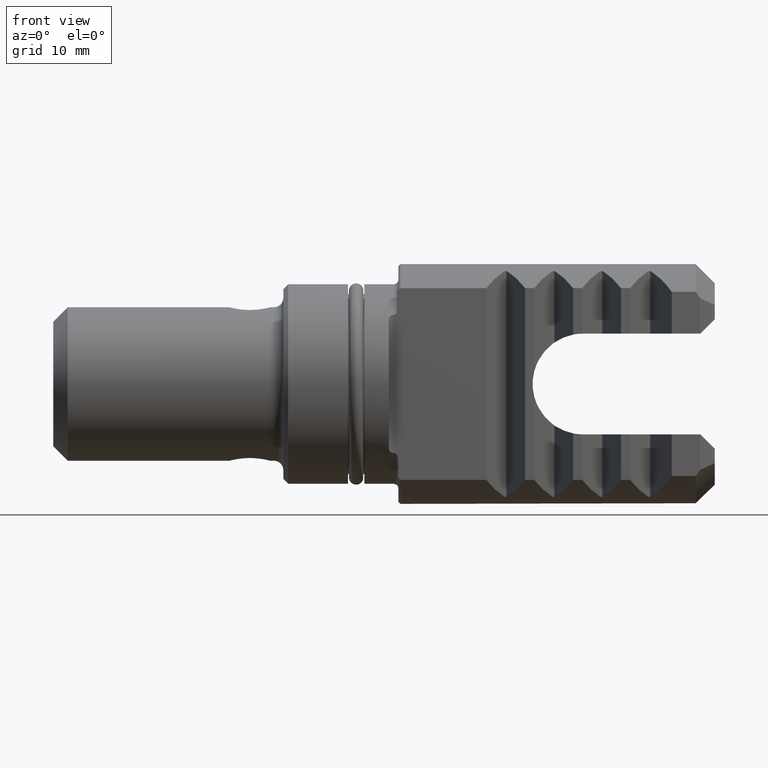
[diagram: clean part render]
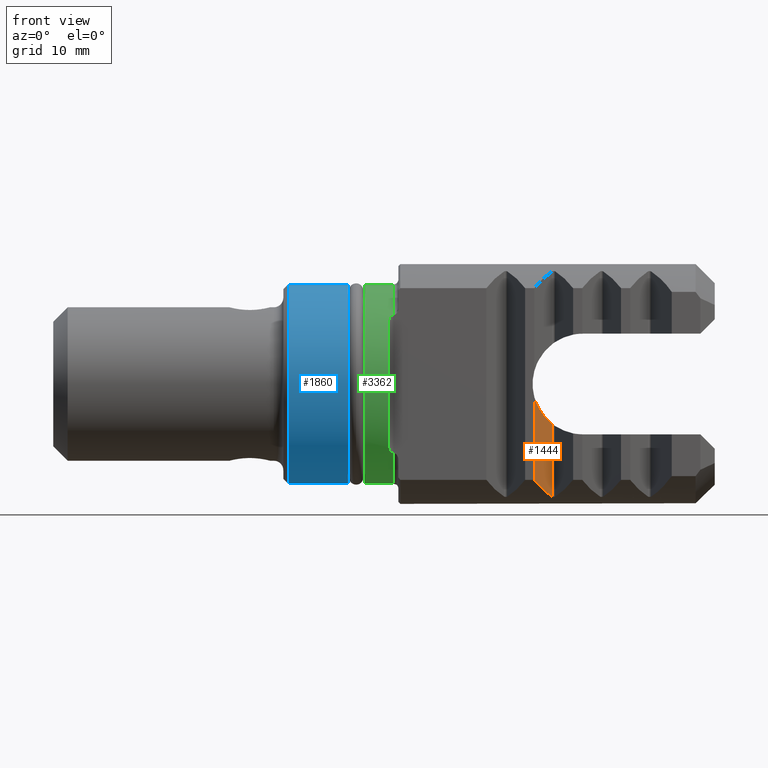
[diagram: same view with three faces highlighted in distinct colors, each labeled with its STEP entity id]
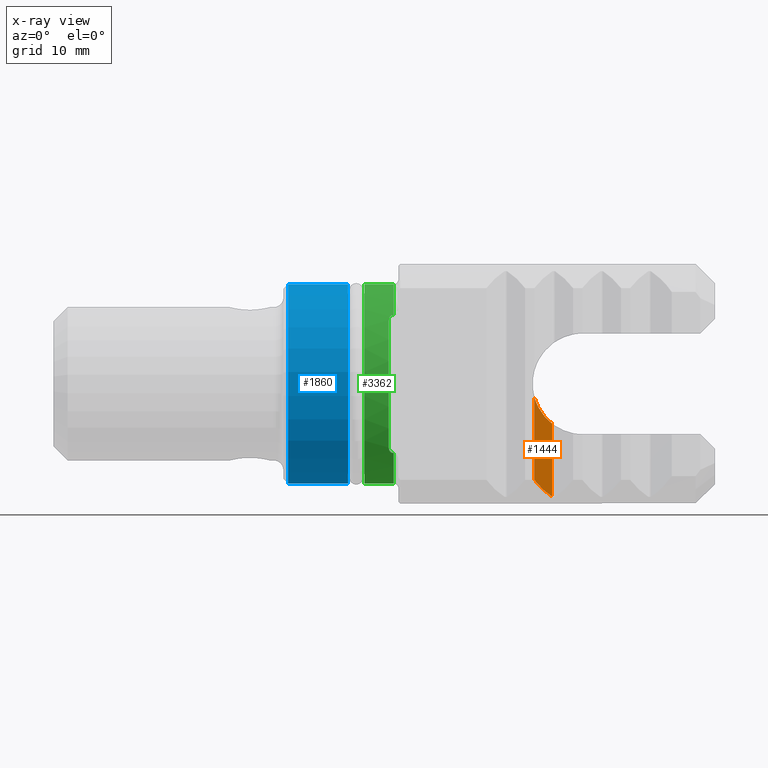
[diagram: x-ray of the same camera — body ghosted, the three highlighted faces saturated]
A machine part, front view with three faces highlighted in distinct colors.
The next image is the same camera in x-ray (body ghosted, the three faces saturated) — at least one of them is partly hidden behind the body in this view.
Their STEP definitions:

[orange] entity #1444 — the highlighted planar face has unit normal (-0.866, 0.5, 0).
#145 = CARTESIAN_POINT ( 'NONE',  ( 50.17927405783629500, -7.500000000000002700, -1.360234692789419300 ) ) ;
#146 = CARTESIAN_POINT ( 'NONE',  ( 50.47818569027632700, -6.982269865640513600, -2.474526937401916100 ) ) ;
#234 = FACE_OUTER_BOUND ( 'NONE', #3201, .T. ) ;
#275 = CARTESIAN_POINT ( 'NONE',  ( 51.11613183575846600, -5.877314729172664600, -3.435786572399651500 ) ) ;
#432 = CARTESIAN_POINT ( 'NONE',  ( 52.02679491924310900, -4.299999999999863000, -11.73712060089702000 ) ) ;
#471 = ORIENTED_EDGE ( 'NONE', *, *, #1736, .T. ) ;
#534 = ORIENTED_EDGE ( 'NONE', *, *, #1788, .T. ) ;
#673 = CARTESIAN_POINT ( 'NONE',  ( 50.17927405783629500, -7.500000000000002700, -1.360234692789419300 ) ) ;
#908 = CARTESIAN_POINT ( 'NONE',  ( 52.02679491924310900, -4.299999999999863000, -4.144086027990119300 ) ) ;
#1103 = VERTEX_POINT ( 'NONE', #4153 ) ;
#1179 = CARTESIAN_POINT ( 'NONE',  ( 50.17927405783629500, -7.500000000000002700, -12.50000000000000000 ) ) ;
#1215 =( BOUNDED_CURVE ( )  B_SPLINE_CURVE ( 3, ( #1618, #3579, #3178, #2424 ),
 .UNSPECIFIED., .F., .F. ) 
 B_SPLINE_CURVE_WITH_KNOTS ( ( 4, 4 ),
 ( 5.063562560282546700, 5.355890089177974800 ),
 .UNSPECIFIED. ) 
 CURVE ( )  GEOMETRIC_REPRESENTATION_ITEM ( )  RATIONAL_B_SPLINE_CURVE ( ( 1.000000000000000000, 0.9928913871268314500, 0.9928913871268314500, 1.000000000000000000 ) ) 
 REPRESENTATION_ITEM ( '' )  );
#1218 = VECTOR ( 'NONE', #3852, 1000.000000000000000 ) ;
#1240 = CARTESIAN_POINT ( 'NONE',  ( 52.02679491924310900, -4.299999999999863000, -4.144086027990119300 ) ) ;
#1324 =( BOUNDED_CURVE ( )  B_SPLINE_CURVE ( 3, ( #908, #275, #146, #145 ),
 .UNSPECIFIED., .F., .F. ) 
 B_SPLINE_CURVE_WITH_KNOTS ( ( 4, 4 ),
 ( 2.231843564040104900, 2.879510337548338800 ),
 .UNSPECIFIED. ) 
 CURVE ( )  GEOMETRIC_REPRESENTATION_ITEM ( )  RATIONAL_B_SPLINE_CURVE ( ( 1.000000000000000000, 0.9653483942130620700, 0.9653483942130620700, 1.000000000000000000 ) ) 
 REPRESENTATION_ITEM ( '' )  );
#1444 = ADVANCED_FACE ( 'NONE', ( #234 ), #3388, .F. ) ;
#1494 = EDGE_CURVE ( 'NONE', #4130, #1103, #1215, .T. ) ;
#1618 = CARTESIAN_POINT ( 'NONE',  ( 52.02679491924310900, -4.299999999999863000, -11.73712060089702000 ) ) ;
#1736 = EDGE_CURVE ( 'NONE', #3636, #3995, #1324, .T. ) ;
#1788 = EDGE_CURVE ( 'NONE', #4130, #3636, #2153, .T. ) ;
#1957 = EDGE_CURVE ( 'NONE', #1103, #3995, #3167, .T. ) ;
#2153 = LINE ( 'NONE', #3855, #1218 ) ;
#2391 = DIRECTION ( 'NONE',  ( -0.0000000000000000000, -0.0000000000000000000, 1.000000000000000000 ) ) ;
#2424 = CARTESIAN_POINT ( 'NONE',  ( 50.17927405783629500, -7.500000000000002700, -9.999999999999998200 ) ) ;
#2533 = DIRECTION ( 'NONE',  ( -0.8660254037844469200, 0.4999999999999856200, 0.0000000000000000000 ) ) ;
#2565 = CARTESIAN_POINT ( 'NONE',  ( 52.02679491924310900, -4.299999999999863000, -12.50000000000000000 ) ) ;
#2571 = DIRECTION ( 'NONE',  ( -0.4999999999999856200, -0.8660254037844469200, 0.0000000000000000000 ) ) ;
#2718 = AXIS2_PLACEMENT_3D ( 'NONE', #2565, #2533, #2571 ) ;
#3167 = LINE ( 'NONE', #1179, #3622 ) ;
#3178 = CARTESIAN_POINT ( 'NONE',  ( 50.74387112841203200, -6.522089187958267900, -10.73343310903130300 ) ) ;
#3201 = EDGE_LOOP ( 'NONE', ( #534, #471, #4227, #3382 ) ) ;
#3382 = ORIENTED_EDGE ( 'NONE', *, *, #1494, .F. ) ;
#3388 = PLANE ( 'NONE',  #2718 ) ;
#3579 = CARTESIAN_POINT ( 'NONE',  ( 51.36412052841708200, -5.447785713785356700, -11.31661895171909300 ) ) ;
#3622 = VECTOR ( 'NONE', #2391, 1000.000000000000000 ) ;
#3636 = VERTEX_POINT ( 'NONE', #1240 ) ;
#3852 = DIRECTION ( 'NONE',  ( -0.0000000000000000000, -0.0000000000000000000, 1.000000000000000000 ) ) ;
#3855 = CARTESIAN_POINT ( 'NONE',  ( 52.02679491924310900, -4.299999999999863000, -12.50000000000000000 ) ) ;
#3995 = VERTEX_POINT ( 'NONE', #673 ) ;
#4130 = VERTEX_POINT ( 'NONE', #432 ) ;
#4153 = CARTESIAN_POINT ( 'NONE',  ( 50.17927405783629500, -7.500000000000002700, -9.999999999999998200 ) ) ;
#4227 = ORIENTED_EDGE ( 'NONE', *, *, #1957, .F. ) ;

[blue] entity #1860 — the highlighted cylindrical surface (partial cylindrical patch) has radius 10.4 mm, axis along (-1, -0, -0).
#69 = EDGE_CURVE ( 'NONE', #587, #1327, #3366, .T. ) ;
#136 = VECTOR ( 'NONE', #1581, 1000.000000000000000 ) ;
#142 = CIRCLE ( 'NONE', #3392, 10.40000000000000000 ) ;
#210 = AXIS2_PLACEMENT_3D ( 'NONE', #4020, #4081, #4172 ) ;
#322 = CIRCLE ( 'NONE', #2746, 10.40000000000000000 ) ;
#587 = VERTEX_POINT ( 'NONE', #3889 ) ;
#637 = ORIENTED_EDGE ( 'NONE', *, *, #69, .F. ) ;
#749 = CARTESIAN_POINT ( 'NONE',  ( 30.74700000000000300, 0.0000000000000000000, 0.0000000000000000000 ) ) ;
#1079 = DIRECTION ( 'NONE',  ( 0.0000000000000000000, 0.0000000000000000000, 1.000000000000000000 ) ) ;
#1082 = DIRECTION ( 'NONE',  ( -1.000000000000000000, -0.0000000000000000000, -0.0000000000000000000 ) ) ;
#1083 = CARTESIAN_POINT ( 'NONE',  ( 24.50000000000000000, 0.0000000000000000000, 0.0000000000000000000 ) ) ;
#1229 = EDGE_CURVE ( 'NONE', #587, #2591, #142, .T. ) ;
#1300 = CARTESIAN_POINT ( 'NONE',  ( 24.50000000000000000, 1.273632671113247300E-015, 10.40000000000000000 ) ) ;
#1327 = VERTEX_POINT ( 'NONE', #3846 ) ;
#1360 = ORIENTED_EDGE ( 'NONE', *, *, #1229, .T. ) ;
#1442 = FACE_OUTER_BOUND ( 'NONE', #2337, .T. ) ;
#1563 = CARTESIAN_POINT ( 'NONE',  ( -32.53304341604300700, 1.273632671113247300E-015, -10.40000000000000000 ) ) ;
#1581 = DIRECTION ( 'NONE',  ( -1.000000000000000000, -0.0000000000000000000, -0.0000000000000000000 ) ) ;
#1646 = DIRECTION ( 'NONE',  ( -1.000000000000000000, -0.0000000000000000000, -0.0000000000000000000 ) ) ;
#1648 = CARTESIAN_POINT ( 'NONE',  ( -32.53304341604300700, 0.0000000000000000000, 10.40000000000000000 ) ) ;
#1718 = LINE ( 'NONE', #1648, #3457 ) ;
#1774 = CYLINDRICAL_SURFACE ( 'NONE', #210, 10.40000000000000000 ) ;
#1860 = ADVANCED_FACE ( 'NONE', ( #1442 ), #1774, .T. ) ;
#2337 = EDGE_LOOP ( 'NONE', ( #637, #1360, #2349, #4206 ) ) ;
#2349 = ORIENTED_EDGE ( 'NONE', *, *, #3347, .T. ) ;
#2591 = VERTEX_POINT ( 'NONE', #3050 ) ;
#2746 = AXIS2_PLACEMENT_3D ( 'NONE', #1083, #1082, #1079 ) ;
#3050 = CARTESIAN_POINT ( 'NONE',  ( 30.74700000000000300, 0.0000000000000000000, 10.40000000000000000 ) ) ;
#3347 = EDGE_CURVE ( 'NONE', #2591, #3566, #1718, .T. ) ;
#3351 = DIRECTION ( 'NONE',  ( 0.0000000000000000000, 0.0000000000000000000, 1.000000000000000000 ) ) ;
#3366 = LINE ( 'NONE', #1563, #136 ) ;
#3381 = DIRECTION ( 'NONE',  ( -1.000000000000000000, -0.0000000000000000000, -0.0000000000000000000 ) ) ;
#3392 = AXIS2_PLACEMENT_3D ( 'NONE', #749, #3381, #3351 ) ;
#3457 = VECTOR ( 'NONE', #1646, 1000.000000000000000 ) ;
#3566 = VERTEX_POINT ( 'NONE', #1300 ) ;
#3700 = EDGE_CURVE ( 'NONE', #1327, #3566, #322, .T. ) ;
#3846 = CARTESIAN_POINT ( 'NONE',  ( 24.50000000000000000, 0.0000000000000000000, -10.40000000000000000 ) ) ;
#3889 = CARTESIAN_POINT ( 'NONE',  ( 30.74700000000000300, 1.273632671113247300E-015, -10.40000000000000000 ) ) ;
#4020 = CARTESIAN_POINT ( 'NONE',  ( -32.53304341604300700, 0.0000000000000000000, 0.0000000000000000000 ) ) ;
#4081 = DIRECTION ( 'NONE',  ( -1.000000000000000000, -0.0000000000000000000, -0.0000000000000000000 ) ) ;
#4172 = DIRECTION ( 'NONE',  ( 0.0000000000000000000, 0.0000000000000000000, 1.000000000000000000 ) ) ;
#4206 = ORIENTED_EDGE ( 'NONE', *, *, #3700, .F. ) ;

[green] entity #3362 — the highlighted cylindrical surface (partial cylindrical patch) has radius 10.4 mm, axis along (-1, -0, -0).
#10 = CARTESIAN_POINT ( 'NONE',  ( 35.00000000000000700, -8.000000000000003600, -6.645299090334455100 ) ) ;
#70 = CARTESIAN_POINT ( 'NONE',  ( 35.50000000000001400, -7.499999999999991100, 7.204859471218027200 ) ) ;
#73 = CARTESIAN_POINT ( 'NONE',  ( 35.41721057707275100, -7.499999999999987600, 7.204859471218218100 ) ) ;
#75 = CARTESIAN_POINT ( 'NONE',  ( 35.33527346695420600, -7.522038127189933500, 7.182023829510587400 ) ) ;
#79 = CARTESIAN_POINT ( 'NONE',  ( 35.20274495657579200, -7.591072351499373200, 7.109018527817939400 ) ) ;
#81 = CARTESIAN_POINT ( 'NONE',  ( 35.15055518356083300, -7.636902374361808300, 7.059956851385894800 ) ) ;
#90 = CARTESIAN_POINT ( 'NONE',  ( 35.03204944366800800, -7.783600973316010800, 6.899031117776509300 ) ) ;
#109 = CARTESIAN_POINT ( 'NONE',  ( 34.99999999999996400, -7.894430905132962200, 6.772389345785069500 ) ) ;
#156 = CARTESIAN_POINT ( 'NONE',  ( 35.00000000000000700, -8.000000000000003600, 6.645299090334455100 ) ) ;
#212 = CIRCLE ( 'NONE', #458, 10.39999999999999900 ) ;
#255 = CIRCLE ( 'NONE', #2541, 10.40000000000000000 ) ;
#343 = ORIENTED_EDGE ( 'NONE', *, *, #3255, .T. ) ;
#458 = AXIS2_PLACEMENT_3D ( 'NONE', #4225, #4218, #4212 ) ;
#483 = CIRCLE ( 'NONE', #1952, 10.40000000000000000 ) ;
#538 = ORIENTED_EDGE ( 'NONE', *, *, #1750, .T. ) ;
#547 = DIRECTION ( 'NONE',  ( -1.000000000000000000, -0.0000000000000000000, -0.0000000000000000000 ) ) ;
#623 = VERTEX_POINT ( 'NONE', #3896 ) ;
#624 = CARTESIAN_POINT ( 'NONE',  ( -32.53304341604300700, 1.273632671113247300E-015, -10.40000000000000000 ) ) ;
#664 = DIRECTION ( 'NONE',  ( 0.0000000000000000000, 0.0000000000000000000, 1.000000000000000000 ) ) ;
#665 = DIRECTION ( 'NONE',  ( -1.000000000000000000, -0.0000000000000000000, -0.0000000000000000000 ) ) ;
#666 = CARTESIAN_POINT ( 'NONE',  ( 35.50000000000000000, 0.0000000000000000000, 0.0000000000000000000 ) ) ;
#697 = ORIENTED_EDGE ( 'NONE', *, *, #3974, .T. ) ;
#859 = CIRCLE ( 'NONE', #2168, 10.39999999999999900 ) ;
#865 = ORIENTED_EDGE ( 'NONE', *, *, #1840, .F. ) ;
#889 = CARTESIAN_POINT ( 'NONE',  ( 35.50000000000001400, -7.499999999999991100, -7.204859471218028100 ) ) ;
#911 = CARTESIAN_POINT ( 'NONE',  ( 35.00000000000000700, -8.000000000000003600, 6.645299090334455100 ) ) ;
#954 = ORIENTED_EDGE ( 'NONE', *, *, #2261, .T. ) ;
#974 = CARTESIAN_POINT ( 'NONE',  ( 35.50000000000001400, -7.499999999999991100, 7.204859471218027200 ) ) ;
#993 = EDGE_CURVE ( 'NONE', #2644, #3797, #255, .T. ) ;
#1003 = LINE ( 'NONE', #624, #1016 ) ;
#1014 = ORIENTED_EDGE ( 'NONE', *, *, #993, .T. ) ;
#1016 = VECTOR ( 'NONE', #547, 1000.000000000000000 ) ;
#1035 = VERTEX_POINT ( 'NONE', #3092 ) ;
#1069 = ORIENTED_EDGE ( 'NONE', *, *, #1826, .T. ) ;
#1080 = AXIS2_PLACEMENT_3D ( 'NONE', #1654, #1678, #1688 ) ;
#1374 = EDGE_LOOP ( 'NONE', ( #3909, #697, #954, #1014, #538, #1069, #343, #865 ) ) ;
#1380 = DIRECTION ( 'NONE',  ( 0.0000000000000000000, 0.0000000000000000000, 1.000000000000000000 ) ) ;
#1391 = B_SPLINE_CURVE_WITH_KNOTS ( 'NONE', 3,
 ( #156, #109, #90, #81, #79, #75, #73, #70 ),
 .UNSPECIFIED., .F., .F.,
 ( 4, 2, 2, 4 ),
 ( 0.002082698555376211200, 0.002575391144789654000, 0.002821737439496372000, 0.003068083734203089900 ),
 .UNSPECIFIED. ) ;
#1425 = CYLINDRICAL_SURFACE ( 'NONE', #1080, 10.40000000000000000 ) ;
#1544 = CARTESIAN_POINT ( 'NONE',  ( 35.50000000000001400, -7.499999999999991100, -7.204859471218028100 ) ) ;
#1580 = CARTESIAN_POINT ( 'NONE',  ( 35.50000000000000000, 1.273632671113247100E-015, -10.39999999999999900 ) ) ;
#1654 = CARTESIAN_POINT ( 'NONE',  ( -32.53304341604300700, 0.0000000000000000000, 0.0000000000000000000 ) ) ;
#1678 = DIRECTION ( 'NONE',  ( -1.000000000000000000, -0.0000000000000000000, -0.0000000000000000000 ) ) ;
#1688 = DIRECTION ( 'NONE',  ( 0.0000000000000000000, 0.0000000000000000000, 1.000000000000000000 ) ) ;
#1750 = EDGE_CURVE ( 'NONE', #3797, #3758, #1391, .T. ) ;
#1778 = CARTESIAN_POINT ( 'NONE',  ( 35.15020898707491900, -7.637182917873428100, -7.059657967324506300 ) ) ;
#1826 = EDGE_CURVE ( 'NONE', #3758, #623, #212, .T. ) ;
#1840 = EDGE_CURVE ( 'NONE', #2290, #1035, #483, .T. ) ;
#1850 = CARTESIAN_POINT ( 'NONE',  ( -32.53304341604300700, 0.0000000000000000000, 10.40000000000000000 ) ) ;
#1865 = DIRECTION ( 'NONE',  ( -1.000000000000000000, -0.0000000000000000000, -0.0000000000000000000 ) ) ;
#1952 = AXIS2_PLACEMENT_3D ( 'NONE', #4154, #3906, #3907 ) ;
#2168 = AXIS2_PLACEMENT_3D ( 'NONE', #666, #665, #664 ) ;
#2261 = EDGE_CURVE ( 'NONE', #3806, #2644, #2539, .T. ) ;
#2290 = VERTEX_POINT ( 'NONE', #2705 ) ;
#2295 = CARTESIAN_POINT ( 'NONE',  ( 35.33498591114653200, -7.522110411368218200, -7.181949567773524600 ) ) ;
#2534 = FACE_OUTER_BOUND ( 'NONE', #1374, .T. ) ;
#2539 = B_SPLINE_CURVE_WITH_KNOTS ( 'NONE', 3,
 ( #1544, #3923, #2295, #4101, #1778, #3058, #2663, #10 ),
 .UNSPECIFIED., .F., .F.,
 ( 4, 2, 2, 4 ),
 ( 0.0009847545670958598700, 0.001230638970196547300, 0.001476523373297234700, 0.001968292179498608200 ),
 .UNSPECIFIED. ) ;
#2541 = AXIS2_PLACEMENT_3D ( 'NONE', #2976, #4006, #1380 ) ;
#2644 = VERTEX_POINT ( 'NONE', #2898 ) ;
#2663 = CARTESIAN_POINT ( 'NONE',  ( 35.00000000000000700, -7.894899419608084800, -6.771825320637360900 ) ) ;
#2705 = CARTESIAN_POINT ( 'NONE',  ( 32.44699999999999600, 1.273632671113247300E-015, -10.40000000000000000 ) ) ;
#2898 = CARTESIAN_POINT ( 'NONE',  ( 35.00000000000000700, -8.000000000000003600, -6.645299090334455100 ) ) ;
#2976 = CARTESIAN_POINT ( 'NONE',  ( 35.00000000000000700, 0.0000000000000000000, 0.0000000000000000000 ) ) ;
#3058 = CARTESIAN_POINT ( 'NONE',  ( 35.03134697617908700, -7.784769206486543200, -6.897731695883423200 ) ) ;
#3092 = CARTESIAN_POINT ( 'NONE',  ( 32.44699999999999600, 0.0000000000000000000, 10.40000000000000000 ) ) ;
#3255 = EDGE_CURVE ( 'NONE', #623, #1035, #3768, .T. ) ;
#3362 = ADVANCED_FACE ( 'NONE', ( #2534 ), #1425, .T. ) ;
#3444 = VERTEX_POINT ( 'NONE', #1580 ) ;
#3542 = VECTOR ( 'NONE', #1865, 1000.000000000000000 ) ;
#3758 = VERTEX_POINT ( 'NONE', #974 ) ;
#3768 = LINE ( 'NONE', #1850, #3542 ) ;
#3797 = VERTEX_POINT ( 'NONE', #911 ) ;
#3806 = VERTEX_POINT ( 'NONE', #889 ) ;
#3896 = CARTESIAN_POINT ( 'NONE',  ( 35.50000000000000000, 0.0000000000000000000, 10.39999999999999900 ) ) ;
#3906 = DIRECTION ( 'NONE',  ( -1.000000000000000000, -0.0000000000000000000, -0.0000000000000000000 ) ) ;
#3907 = DIRECTION ( 'NONE',  ( 0.0000000000000000000, 0.0000000000000000000, 1.000000000000000000 ) ) ;
#3909 = ORIENTED_EDGE ( 'NONE', *, *, #4060, .F. ) ;
#3923 = CARTESIAN_POINT ( 'NONE',  ( 35.41710280320941700, -7.499999999999977800, -7.204859471218198600 ) ) ;
#3974 = EDGE_CURVE ( 'NONE', #3444, #3806, #859, .T. ) ;
#4006 = DIRECTION ( 'NONE',  ( -1.000000000000000000, -0.0000000000000000000, -0.0000000000000000000 ) ) ;
#4060 = EDGE_CURVE ( 'NONE', #3444, #2290, #1003, .T. ) ;
#4101 = CARTESIAN_POINT ( 'NONE',  ( 35.20221614201253900, -7.591425793319141100, -7.108642560952497500 ) ) ;
#4154 = CARTESIAN_POINT ( 'NONE',  ( 32.44699999999999600, 0.0000000000000000000, 0.0000000000000000000 ) ) ;
#4212 = DIRECTION ( 'NONE',  ( 0.0000000000000000000, 0.0000000000000000000, 1.000000000000000000 ) ) ;
#4218 = DIRECTION ( 'NONE',  ( -1.000000000000000000, -0.0000000000000000000, -0.0000000000000000000 ) ) ;
#4225 = CARTESIAN_POINT ( 'NONE',  ( 35.50000000000000000, 0.0000000000000000000, 0.0000000000000000000 ) ) ;